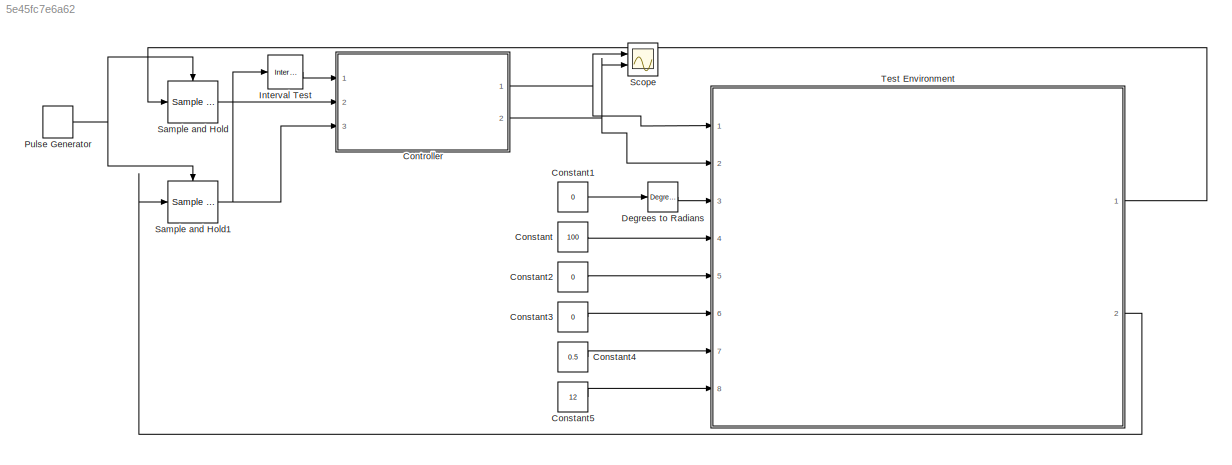
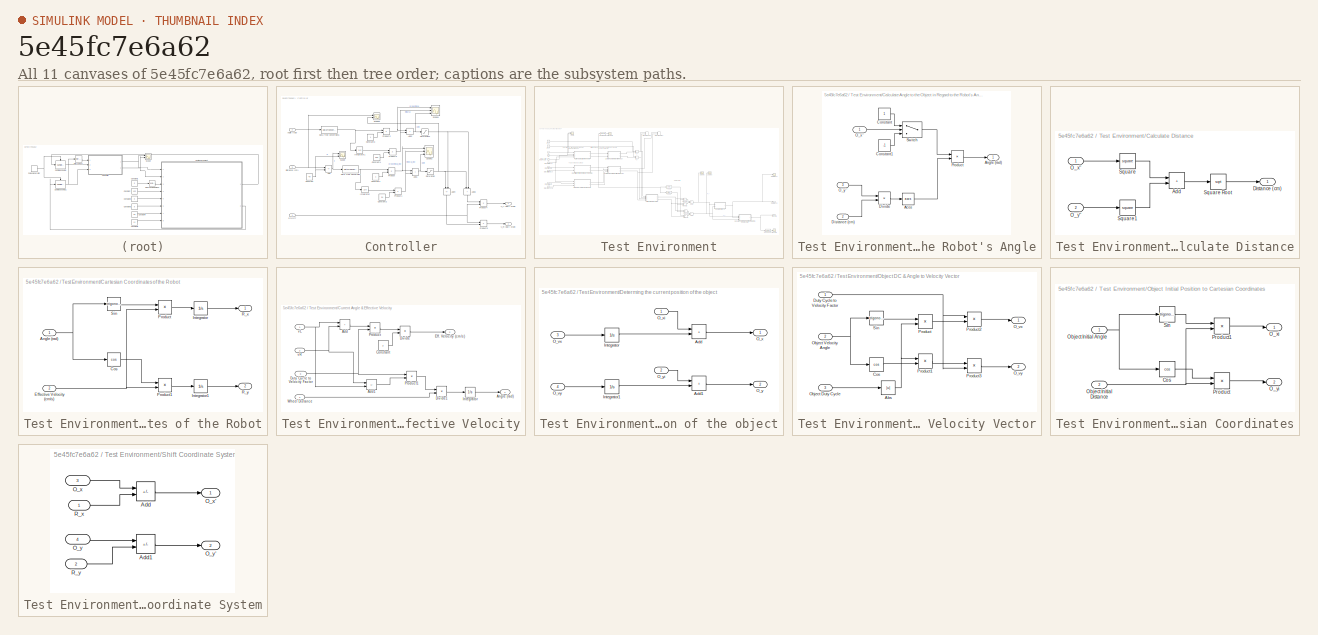
[diagram: thumbnail index - all 11 canvases of the model, root first then tree order]
MODEL slx_5e45fc7e6a62
KIND model
CONFIG AbsTol = auto
CONFIG EnableMultiTasking = on
CONFIG FixedStep = auto
CONFIG MaxStep = auto
CONFIG MinStep = auto
CONFIG RelTol = 1e-3
CONFIG SampleTimeConstraint = Unconstrained
CONFIG SolverName = VariableStepAuto
CONFIG StartTime = 0.0
CONFIG StopTime = 50
BLOCK [Constant] Constant
  Value = 100
BLOCK [Constant] Constant1
  Value = 0
BLOCK [Constant] Constant2
  Value = 0
BLOCK [Constant] Constant3
  Value = 0
BLOCK [Constant] Constant4
  Value = 0.5
BLOCK [Constant] Constant5
  Value = 12
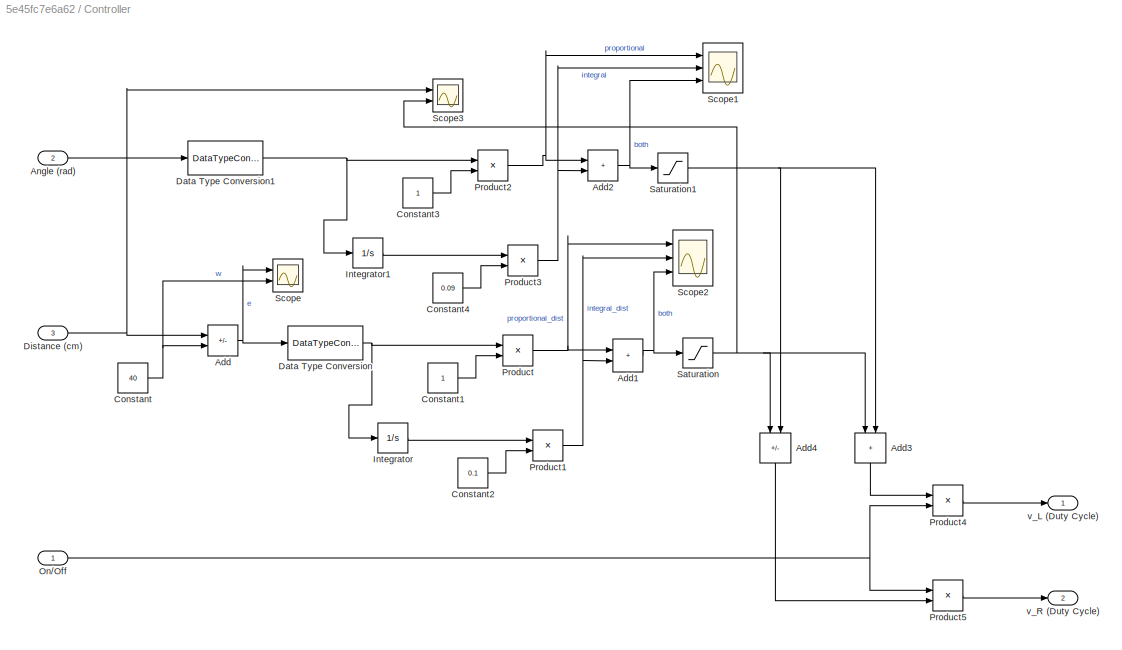
BLOCK [SubSystem] Controller
  Ports = [3, 2]
  RequestExecContextInheritance = off
BLOCK [Sum] Controller/Add
  IconShape = rectangular
  Inputs = +-
  Ports = [2, 1]
BLOCK [Sum] Controller/Add1
  IconShape = rectangular
  Ports = [2, 1]
BLOCK [Sum] Controller/Add2
  IconShape = rectangular
  Ports = [2, 1]
BLOCK [Sum] Controller/Add3
  IconShape = rectangular
  NameLocation = left
  Ports = [2, 1]
BLOCK [Sum] Controller/Add4
  IconShape = rectangular
  Inputs = +-
  NameLocation = left
  Ports = [2, 1]
BLOCK [Inport] Controller/Angle (rad)
  Port = 2
BLOCK [Constant] Controller/Constant
  Value = 40
BLOCK [Constant] Controller/Constant1
BLOCK [Constant] Controller/Constant2
  Value = 0.1
BLOCK [Constant] Controller/Constant3
BLOCK [Constant] Controller/Constant4
  Value = 0.09
BLOCK [DataTypeConversion] Controller/Data Type Conversion
  OutDataTypeStr = double
  RndMeth = Floor
  SaturateOnIntegerOverflow = off
BLOCK [DataTypeConversion] Controller/Data Type Conversion1
  OutDataTypeStr = double
  RndMeth = Floor
  SaturateOnIntegerOverflow = off
BLOCK [Inport] Controller/Distance (cm)
  Port = 3
BLOCK [Integrator] Controller/Integrator
  Ports = [1, 1]
BLOCK [Integrator] Controller/Integrator1
  Ports = [1, 1]
BLOCK [Inport] Controller/On//Off
BLOCK [Product] Controller/Product
  Ports = [2, 1]
BLOCK [Product] Controller/Product1
  Ports = [2, 1]
BLOCK [Product] Controller/Product2
  Ports = [2, 1]
BLOCK [Product] Controller/Product3
  Ports = [2, 1]
BLOCK [Product] Controller/Product4
  Ports = [2, 1]
BLOCK [Product] Controller/Product5
  Ports = [2, 1]
BLOCK [Saturate] Controller/Saturation
  LowerLimit = -100
  UpperLimit = 100
BLOCK [Saturate] Controller/Saturation1
  LowerLimit = -50
  UpperLimit = 50
BLOCK [Scope] Controller/Scope
  Floating = off
  NumInputPorts = 2
  Ports = [2]
  ScopeSpecificationString = Simulink.scopes.TimeScopeBlockCfg('CurrentConfiguration', extmgr.ConfigurationSet(extmgr.Configuration('Core','General UI',true),extmgr.Configuration('Core','Source UI',true),extmgr.Configuration('Sources','WiredSimulink',true,'DataLoggingVariableName','ScopeData1'),extmgr.Configuration('Visuals','Time Domain',true,'SerializedDisplays',{struct('MinYLimReal','-58.91297','MaxYLimReal','130.21677','Y...<+1427ch>
BLOCK [Scope] Controller/Scope1
  Floating = off
  NumInputPorts = 3
  Ports = [3]
  ScopeSpecificationString = Simulink.scopes.TimeScopeBlockCfg('CurrentConfiguration', extmgr.ConfigurationSet(extmgr.Configuration('Core','General UI',true),extmgr.Configuration('Core','Source UI',true),extmgr.Configuration('Sources','WiredSimulink',true,'DataLoggingVariableName','ScopeData2'),extmgr.Configuration('Visuals','Time Domain',true,'SerializedDisplays',{struct('MinYLimReal','-4.13948','MaxYLimReal','5.98094','YLab...<+1442ch>
BLOCK [Scope] Controller/Scope2
  Floating = off
  NumInputPorts = 3
  Ports = [3]
  ScopeSpecificationString = Simulink.scopes.TimeScopeBlockCfg('CurrentConfiguration', extmgr.ConfigurationSet(extmgr.Configuration('Core','General UI',true),extmgr.Configuration('Core','Source UI',true),extmgr.Configuration('Sources','WiredSimulink',true,'DataLoggingVariableName','ScopeData3'),extmgr.Configuration('Visuals','Time Domain',true,'SerializedDisplays',{struct('MinYLimReal','-65.57541','MaxYLimReal','182.72615','Y...<+1461ch>
BLOCK [Scope] Controller/Scope3
  Floating = off
  NumInputPorts = 2
  Ports = [2]
  ScopeSpecificationString = Simulink.scopes.TimeScopeBlockCfg('CurrentConfiguration', extmgr.ConfigurationSet(extmgr.Configuration('Core','General UI',true),extmgr.Configuration('Core','Source UI',true),extmgr.Configuration('Sources','WiredSimulink',true,'DataLoggingVariableName','ScopeData4'),extmgr.Configuration('Visuals','Time Domain',true,'SerializedDisplays',{struct('MinYLimReal','-64.75139','MaxYLimReal','175.30992','Y...<+1448ch>
BLOCK [Outport] Controller/v_L (Duty Cycle)
BLOCK [Outport] Controller/v_R (Duty Cycle)
  Port = 2
BLOCK [Reference] Degrees to Radians  REF=simulink_extras/Transformations/Degrees to
Radians
  Ports = [1, 1]
  SourceBlock = simulink_extras/Transformations/Degrees to\nRadians
  SourceProductBaseCode = SL
  SourceType = DegreesToRadians
BLOCK [Reference] Interval Test  REF=simulink/Logic and Bit
Operations/Interval Test
  Ports = [1, 1]
  SourceBlock = simulink/Logic and Bit\nOperations/Interval Test
  SourceProductBaseCode = SL
  SourceType = Interval Test
BLOCK [DiscretePulseGenerator] Pulse Generator
  Period = 0.5
  Ports = [0, 1]
  PulseType = Time based
  PulseWidth = 5
BLOCK [Reference] Sample and Hold  REF=dspsigops/Sample
and Hold
  Ports = [1, 1, 0, 1]
  SourceBlock = dspsigops/Sample\nand Hold
  SourceProductBaseCode = DS
  SourceType = Sample and Hold
BLOCK [Reference] Sample and Hold1  REF=dspsigops/Sample
and Hold
  Ports = [1, 1, 0, 1]
  SourceBlock = dspsigops/Sample\nand Hold
  SourceProductBaseCode = DS
  SourceType = Sample and Hold
BLOCK [Scope] Scope
  Floating = off
  NumInputPorts = 2
  Ports = [2]
  ScopeSpecificationString = Simulink.scopes.TimeScopeBlockCfg('CurrentConfiguration', extmgr.ConfigurationSet(extmgr.Configuration('Core','General UI',true),extmgr.Configuration('Core','Source UI',true),extmgr.Configuration('Sources','WiredSimulink',true,'DataLoggingVariableName','ScopeData5'),extmgr.Configuration('Visuals','Time Domain',true,'SerializedDisplays',{struct('MinYLimReal','-15.17993','MaxYLimReal','117.5951','YL...<+1422ch>
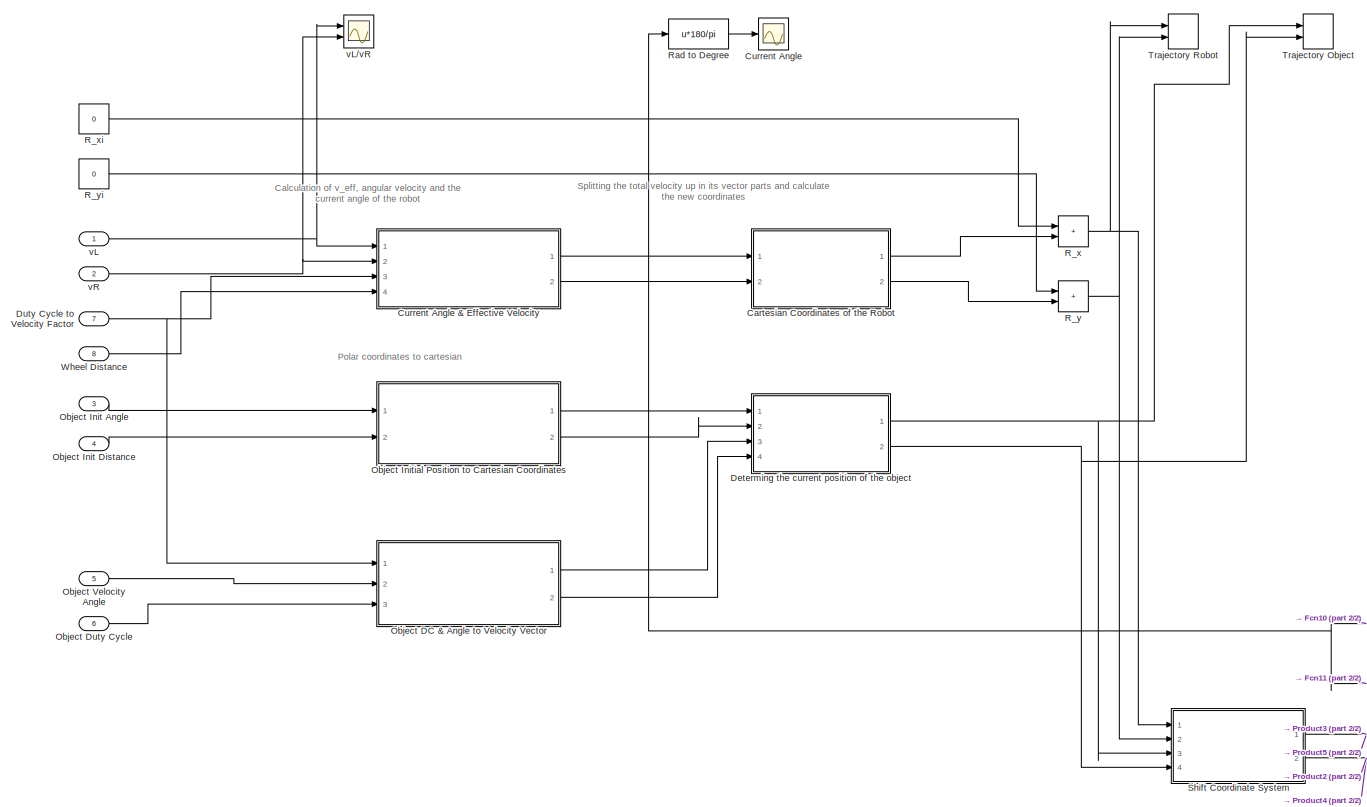
[diagram: Test Environment - part 1/2, middle left region]
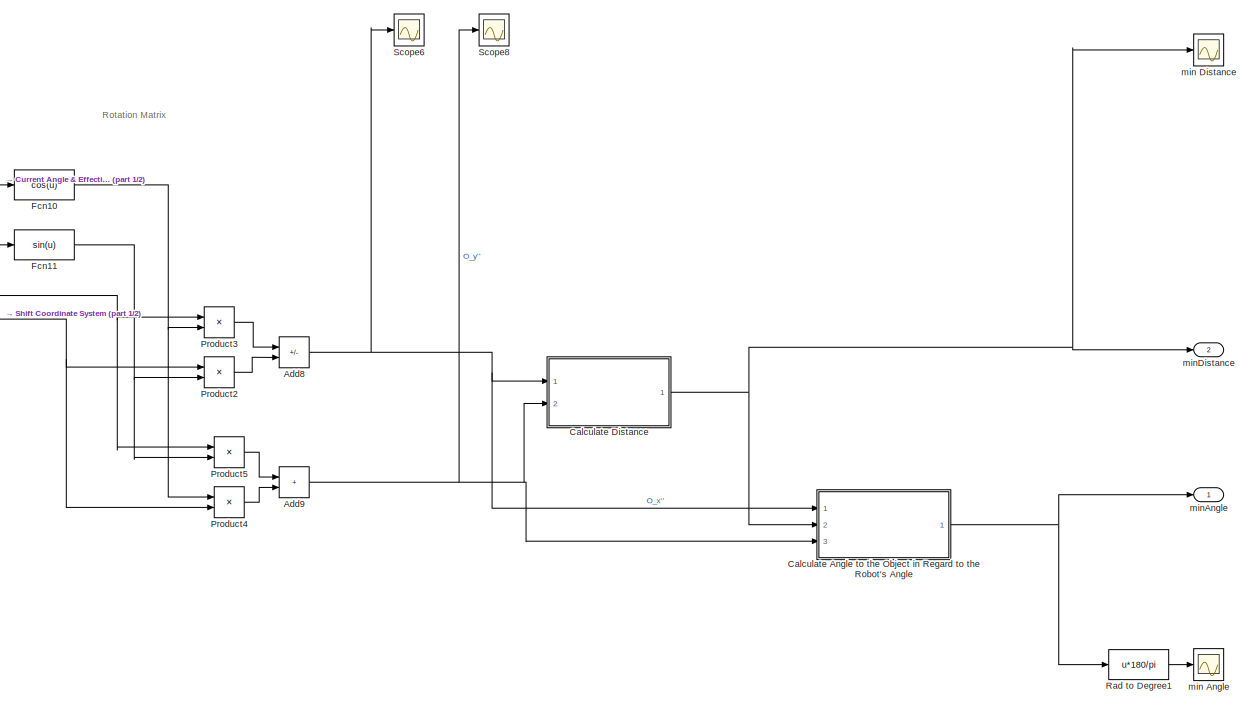
[diagram: Test Environment - part 2/2, bottom right region]
BLOCK [SubSystem] Test Environment
  Ports = [8, 2]
  RequestExecContextInheritance = off
BLOCK [Sum] Test Environment/Add8
  IconShape = rectangular
  Inputs = +-
  Ports = [2, 1]
BLOCK [Sum] Test Environment/Add9
  IconShape = rectangular
  Ports = [2, 1]
BLOCK [SubSystem] Test Environment/Calculate Angle to the Object in Regard to the Robot's Angle
  Ports = [3, 1]
  RequestExecContextInheritance = off
BLOCK [Trigonometry] Test Environment/Calculate Angle to the Object in Regard to the Robot's Angle/Acos
  Operator = acos
  Ports = [1, 1]
BLOCK [Outport] Test Environment/Calculate Angle to the Object in Regard to the Robot's Angle/Angle (rad)
BLOCK [Constant] Test Environment/Calculate Angle to the Object in Regard to the Robot's Angle/Constant
BLOCK [Constant] Test Environment/Calculate Angle to the Object in Regard to the Robot's Angle/Constant1
  Value = -1
BLOCK [Inport] Test Environment/Calculate Angle to the Object in Regard to the Robot's Angle/Distance (cm)
  Port = 2
BLOCK [Product] Test Environment/Calculate Angle to the Object in Regard to the Robot's Angle/Divide
  Inputs = */
  Ports = [2, 1]
BLOCK [Inport] Test Environment/Calculate Angle to the Object in Regard to the Robot's Angle/O_x''
BLOCK [Inport] Test Environment/Calculate Angle to the Object in Regard to the Robot's Angle/O_y''
  Port = 3
BLOCK [Product] Test Environment/Calculate Angle to the Object in Regard to the Robot's Angle/Product
  Ports = [2, 1]
BLOCK [Switch] Test Environment/Calculate Angle to the Object in Regard to the Robot's Angle/Switch
  Criteria = u2 > Threshold
  InputSameDT = off
  SaturateOnIntegerOverflow = off
BLOCK [SubSystem] Test Environment/Calculate Distance
  Ports = [2, 1]
  RequestExecContextInheritance = off
BLOCK [Sum] Test Environment/Calculate Distance/Add
  IconShape = rectangular
  Ports = [2, 1]
BLOCK [Outport] Test Environment/Calculate Distance/Distance (cm)
BLOCK [Inport] Test Environment/Calculate Distance/O_x''
BLOCK [Inport] Test Environment/Calculate Distance/O_y''
  Port = 2
BLOCK [Math] Test Environment/Calculate Distance/Square
  Operator = square
  Ports = [1, 1]
BLOCK [Sqrt] Test Environment/Calculate Distance/Square Root
BLOCK [Math] Test Environment/Calculate Distance/Square1
  Operator = square
  Ports = [1, 1]
BLOCK [SubSystem] Test Environment/Cartesian Coordinates of the Robot
  Ports = [2, 2]
  RequestExecContextInheritance = off
BLOCK [Inport] Test Environment/Cartesian Coordinates of the Robot/Angle (rad)
BLOCK [Trigonometry] Test Environment/Cartesian Coordinates of the Robot/Cos
  Operator = cos
  Ports = [1, 1]
BLOCK [Inport] Test Environment/Cartesian Coordinates of the Robot/Effective Velocity (cm//s)
  Port = 2
BLOCK [Integrator] Test Environment/Cartesian Coordinates of the Robot/Integrator
  Ports = [1, 1]
BLOCK [Integrator] Test Environment/Cartesian Coordinates of the Robot/Integrator1
  Ports = [1, 1]
BLOCK [Product] Test Environment/Cartesian Coordinates of the Robot/Product
  Ports = [2, 1]
BLOCK [Product] Test Environment/Cartesian Coordinates of the Robot/Product1
  Ports = [2, 1]
BLOCK [Outport] Test Environment/Cartesian Coordinates of the Robot/R_x
BLOCK [Outport] Test Environment/Cartesian Coordinates of the Robot/R_y
  Port = 2
BLOCK [Trigonometry] Test Environment/Cartesian Coordinates of the Robot/Sin
  Ports = [1, 1]
BLOCK [Scope] Test Environment/Current Angle
  Floating = off
  NumInputPorts = 1
  Ports = [1]
  ScopeSpecificationString = Simulink.scopes.TimeScopeBlockCfg('CurrentConfiguration', extmgr.ConfigurationSet(extmgr.Configuration('Core','General UI',true),extmgr.Configuration('Core','Source UI',true),extmgr.Configuration('Sources','WiredSimulink',true,'DataLoggingVariableName','ScopeData1'),extmgr.Configuration('Visuals','Time Domain',true,'SerializedDisplays',{struct('MinYLimReal','-106.06263','MaxYLimReal','11.78474','Y...<+1415ch>
BLOCK [SubSystem] Test Environment/Current Angle & Effective Velocity
  Ports = [4, 2]
  RequestExecContextInheritance = off
BLOCK [Sum] Test Environment/Current Angle & Effective Velocity/Add
  IconShape = rectangular
  Ports = [2, 1]
BLOCK [Sum] Test Environment/Current Angle & Effective Velocity/Add1
  IconShape = rectangular
  Inputs = +-
  Ports = [2, 1]
BLOCK [Outport] Test Environment/Current Angle & Effective Velocity/Angle (rad)
BLOCK [Constant] Test Environment/Current Angle & Effective Velocity/Constant
  Value = 2
BLOCK [Product] Test Environment/Current Angle & Effective Velocity/Divide
  Inputs = */
  Ports = [2, 1]
BLOCK [Product] Test Environment/Current Angle & Effective Velocity/Divide1
  Inputs = */
  Ports = [2, 1]
BLOCK [Inport] Test Environment/Current Angle & Effective Velocity/Duty Cycle to Velocity Factor
  Port = 3
BLOCK [Outport] Test Environment/Current Angle & Effective Velocity/Eff. Velocity (cm//s)
  Port = 2
BLOCK [Integrator] Test Environment/Current Angle & Effective Velocity/Integrator
  Ports = [1, 1]
BLOCK [Product] Test Environment/Current Angle & Effective Velocity/Product
  Ports = [2, 1]
BLOCK [Product] Test Environment/Current Angle & Effective Velocity/Product1
  Ports = [2, 1]
BLOCK [Inport] Test Environment/Current Angle & Effective Velocity/Wheel Distance
  Port = 4
BLOCK [Inport] Test Environment/Current Angle & Effective Velocity/vL
BLOCK [Inport] Test Environment/Current Angle & Effective Velocity/vR
  Port = 2
BLOCK [SubSystem] Test Environment/Determing the current position of the object
  Ports = [4, 2]
  RequestExecContextInheritance = off
BLOCK [Sum] Test Environment/Determing the current position of the object/Add
  IconShape = rectangular
  Ports = [2, 1]
BLOCK [Sum] Test Environment/Determing the current position of the object/Add1
  IconShape = rectangular
  Ports = [2, 1]
BLOCK [Integrator] Test Environment/Determing the current position of the object/Integrator
  Ports = [1, 1]
BLOCK [Integrator] Test Environment/Determing the current position of the object/Integrator1
  Ports = [1, 1]
BLOCK [Inport] Test Environment/Determing the current position of the object/O_vx
  Port = 3
BLOCK [Inport] Test Environment/Determing the current position of the object/O_vy
  Port = 4
BLOCK [Outport] Test Environment/Determing the current position of the object/O_x
BLOCK [Inport] Test Environment/Determing the current position of the object/O_xi
BLOCK [Outport] Test Environment/Determing the current position of the object/O_y
  Port = 2
BLOCK [Inport] Test Environment/Determing the current position of the object/O_yi
  Port = 2
BLOCK [Inport] Test Environment/Duty Cycle to Velocity Factor
  Port = 7
BLOCK [Fcn] Test Environment/Fcn10
  Expr = cos(u)
BLOCK [Fcn] Test Environment/Fcn11
  Expr = sin(u)
BLOCK [SubSystem] Test Environment/Object DC & Angle to Velocity Vector
  Ports = [3, 2]
  RequestExecContextInheritance = off
BLOCK [Abs] Test Environment/Object DC & Angle to Velocity Vector/Abs
  SaturateOnIntegerOverflow = off
BLOCK [Trigonometry] Test Environment/Object DC & Angle to Velocity Vector/Cos
  Operator = cos
  Ports = [1, 1]
BLOCK [Inport] Test Environment/Object DC & Angle to Velocity Vector/Duty Cycle to Velocity Factor
BLOCK [Outport] Test Environment/Object DC & Angle to Velocity Vector/O_vx
BLOCK [Outport] Test Environment/Object DC & Angle to Velocity Vector/O_vy
  Port = 2
BLOCK [Inport] Test Environment/Object DC & Angle to Velocity Vector/Object Duty Cycle
  Port = 3
BLOCK [Inport] Test Environment/Object DC & Angle to Velocity Vector/Object Velocity Angle
  Port = 2
BLOCK [Product] Test Environment/Object DC & Angle to Velocity Vector/Product
  Ports = [2, 1]
BLOCK [Product] Test Environment/Object DC & Angle to Velocity Vector/Product1
  Ports = [2, 1]
BLOCK [Product] Test Environment/Object DC & Angle to Velocity Vector/Product2
  Ports = [2, 1]
BLOCK [Product] Test Environment/Object DC & Angle to Velocity Vector/Product3
  Ports = [2, 1]
BLOCK [Trigonometry] Test Environment/Object DC & Angle to Velocity Vector/Sin
  Ports = [1, 1]
BLOCK [Inport] Test Environment/Object Duty Cycle
  Port = 6
BLOCK [Inport] Test Environment/Object Init Angle
  Port = 3
BLOCK [Inport] Test Environment/Object Init Distance
  Port = 4
BLOCK [SubSystem] Test Environment/Object Initial Position to Cartesian Coordinates
  Ports = [2, 2]
  RequestExecContextInheritance = off
BLOCK [Trigonometry] Test Environment/Object Initial Position to Cartesian Coordinates/Cos
  Operator = cos
  Ports = [1, 1]
BLOCK [Outport] Test Environment/Object Initial Position to Cartesian Coordinates/O_xi
BLOCK [Outport] Test Environment/Object Initial Position to Cartesian Coordinates/O_yi
  Port = 2
BLOCK [Inport] Test Environment/Object Initial Position to Cartesian Coordinates/Object Initial Angle
BLOCK [Inport] Test Environment/Object Initial Position to Cartesian Coordinates/Object Initial Distance
  Port = 2
BLOCK [Product] Test Environment/Object Initial Position to Cartesian Coordinates/Product
  Ports = [2, 1]
BLOCK [Product] Test Environment/Object Initial Position to Cartesian Coordinates/Product1
  Ports = [2, 1]
BLOCK [Trigonometry] Test Environment/Object Initial Position to Cartesian Coordinates/Sin
  Ports = [1, 1]
BLOCK [Inport] Test Environment/Object Velocity Angle
  Port = 5
BLOCK [Product] Test Environment/Product2
  Ports = [2, 1]
BLOCK [Product] Test Environment/Product3
  Ports = [2, 1]
BLOCK [Product] Test Environment/Product4
  Ports = [2, 1]
BLOCK [Product] Test Environment/Product5
  Ports = [2, 1]
BLOCK [Sum] Test Environment/R_x
  IconShape = rectangular
  Ports = [2, 1]
BLOCK [Constant] Test Environment/R_xi
  Value = 0
BLOCK [Sum] Test Environment/R_y
  IconShape = rectangular
  Ports = [2, 1]
BLOCK [Constant] Test Environment/R_yi
  Value = 0
BLOCK [Fcn] Test Environment/Rad to Degree
  Expr = u*180/pi
BLOCK [Fcn] Test Environment/Rad to Degree1
  Expr = u*180/pi
BLOCK [Scope] Test Environment/Scope6
  Floating = off
  NumInputPorts = 1
  Ports = [1]
  ScopeSpecificationString = Simulink.scopes.TimeScopeBlockCfg('CurrentConfiguration', extmgr.ConfigurationSet(extmgr.Configuration('Core','General UI',true),extmgr.Configuration('Core','Source UI',true),extmgr.Configuration('Sources','WiredSimulink',true,'DataLoggingVariableName','ScopeData3'),extmgr.Configuration('Visuals','Time Domain',true,'SerializedDisplays',{struct('MinYLimReal','-63.69427','MaxYLimReal','215.89772','Y...<+1404ch>
BLOCK [Scope] Test Environment/Scope8
  Floating = off
  NumInputPorts = 1
  Ports = [1]
  ScopeSpecificationString = Simulink.scopes.TimeScopeBlockCfg('CurrentConfiguration', extmgr.ConfigurationSet(extmgr.Configuration('Core','General UI',true),extmgr.Configuration('Core','Source UI',true),extmgr.Configuration('Sources','WiredSimulink',true,'DataLoggingVariableName','ScopeData5'),extmgr.Configuration('Visuals','Time Domain',true,'SerializedDisplays',{struct('MinYLimReal','31.82805','MaxYLimReal','139.52764','YL...<+1447ch>
BLOCK [SubSystem] Test Environment/Shift Coordinate System
  Ports = [4, 2]
  RequestExecContextInheritance = off
BLOCK [Sum] Test Environment/Shift Coordinate System/Add
  IconShape = rectangular
  Inputs = +-
  Ports = [2, 1]
BLOCK [Sum] Test Environment/Shift Coordinate System/Add1
  IconShape = rectangular
  Inputs = +-
  Ports = [2, 1]
BLOCK [Inport] Test Environment/Shift Coordinate System/O_x
  NameLocation = top
  Port = 3
BLOCK [Outport] Test Environment/Shift Coordinate System/O_x'
BLOCK [Inport] Test Environment/Shift Coordinate System/O_y
  NameLocation = top
  Port = 4
BLOCK [Outport] Test Environment/Shift Coordinate System/O_y'
  Port = 2
BLOCK [Inport] Test Environment/Shift Coordinate System/R_x
  NameLocation = top
BLOCK [Inport] Test Environment/Shift Coordinate System/R_y
  NameLocation = top
  Port = 2
BLOCK [Record] Test Environment/Trajectory Object
  CompatibilityTag = XY
  FileSettingsInternal = {"entries":[{"content":{"excelSettings":{"content":{},"type":"Streamout.ExcelSettings"}},"type":"Streamout.FileSettingStorage","uuid":"4358cfd4-5c60-4c2b-a41c-9f08c4051154"}],"packageUris":["http://schema.mathworks.com/mf0/streamout_blocks/R2020a"],"version":"1.0"}
  Layout = [1 1]
  Ports = [2]
  SignalsInternal = {"entries":[{"content":{"signals":[{"content":{"blockPath":["TestEnvironment/Test Environment/Trajectory Object"],"channel":[],"dimensions":[1],"domain":"TestEnvironment/Test Environment/Trajectory Object","lineColor":"#a2142f","plots":[1],"port":1,"sid":[""],"signalID":97443,"signalName":"Determing the current position of the object:1"},"type":"RecordBlkView.Signal","uuid":"aa5916f7-6d25-42f7-895...<+575ch>
  VisualizationBindings = {"xyplotplugin":{"info":[{"series":[{"bindingParametersList":[{"parameter":"X-Axis","signalID":97443,"signalName":"Determing the current position of the object:1"},{"parameter":"Y-Axis","signalID":97447,"signalName":"Determing the current position of the object:2"}],"seriesID":34098}],"subplotID":1}]}}
  st = -1
BLOCK [Record] Test Environment/Trajectory Robot
  CompatibilityTag = XY
  FileSettingsInternal = {"entries":[{"content":{"excelSettings":{"content":{},"type":"Streamout.ExcelSettings"}},"type":"Streamout.FileSettingStorage","uuid":"ce479cd9-54bd-4dbf-b5c9-76e8a047de80"}],"packageUris":["http://schema.mathworks.com/mf0/streamout_blocks/R2020a"],"version":"1.0"}
  Layout = [1 1]
  Ports = [2]
  SignalsInternal = {"entries":[{"content":{"signals":[{"content":{"blockPath":["TestEnvironment/Test Environment/Trajectory Robot"],"channel":[],"dimensions":[1],"domain":"TestEnvironment/Test Environment/Trajectory Robot","lineColor":"#a2142f","plots":[1],"port":1,"sid":[""],"signalID":97451,"signalName":"R_x"},"type":"RecordBlkView.Signal","uuid":"04633b91-b40c-4f09-8643-1ba6794452d3"},{"content":{"blockPath":["Te...<+485ch>
  VisualizationBindings = {"xyplotplugin":{"info":[{"series":[{"bindingParametersList":[{"parameter":"X-Axis","signalID":97451,"signalName":"R_x"},{"parameter":"Y-Axis","signalID":97455,"signalName":"R_y"}],"seriesID":34460}],"subplotID":1}]}}
  st = -1
BLOCK [Inport] Test Environment/Wheel Distance
  Port = 8
BLOCK [Scope] Test Environment/min Angle
  Floating = off
  NumInputPorts = 1
  Ports = [1]
  ScopeSpecificationString = Simulink.scopes.TimeScopeBlockCfg('CurrentConfiguration', extmgr.ConfigurationSet(extmgr.Configuration('Core','General UI',true),extmgr.Configuration('Core','Source UI',true),extmgr.Configuration('Sources','WiredSimulink',true,'DataLoggingVariableName','ScopeData6'),extmgr.Configuration('Visuals','Time Domain',true,'SerializedDisplays',{struct('MinYLimReal','-74.7786','MaxYLimReal','86.08651','YLa...<+1421ch>
BLOCK [Scope] Test Environment/min Distance
  Floating = off
  NumInputPorts = 1
  Ports = [1]
  ScopeSpecificationString = Simulink.scopes.TimeScopeBlockCfg('CurrentConfiguration', extmgr.ConfigurationSet(extmgr.Configuration('Core','General UI',true),extmgr.Configuration('Core','Source UI',true),extmgr.Configuration('Sources','WiredSimulink',true,'DataLoggingVariableName','ScopeData2'),extmgr.Configuration('Visuals','Time Domain',true,'SerializedDisplays',{struct('MinYLimReal','19.22919','MaxYLimReal','165.97875','YL...<+1417ch>
BLOCK [Outport] Test Environment/minAngle
BLOCK [Outport] Test Environment/minDistance
  Port = 2
BLOCK [Inport] Test Environment/vL
BLOCK [Scope] Test Environment/vL//vR
  Floating = off
  NumInputPorts = 2
  Ports = [2]
  ScopeSpecificationString = Simulink.scopes.TimeScopeBlockCfg('CurrentConfiguration', extmgr.ConfigurationSet(extmgr.Configuration('Core','General UI',true),extmgr.Configuration('Core','Source UI',true),extmgr.Configuration('Sources','WiredSimulink',true,'DataLoggingVariableName','ScopeData1','DataLoggingLimitDataPoints',true,'DataLoggingSaveFormat','Array','DataLoggingDecimation','1','DataLoggingDecimateData',true),extmgr.C...<+1561ch>
BLOCK [Inport] Test Environment/vR
  Port = 2
ANNOTATION Test Environment: Calculation of v_eff, angular velocity and the current angle of the robot
ANNOTATION Test Environment: Polar coordinates to cartesian
ANNOTATION Test Environment: Rotation Matrix
ANNOTATION Test Environment: Splitting the total velocity up in its vector parts and calculate the new coordinates
LINE Constant1:1 -> Degrees to Radians:1
LINE Constant2:1 -> Test Environment:5
LINE Constant3:1 -> Test Environment:6
LINE Constant4:1 -> Test Environment:7
LINE Constant5:1 -> Test Environment:8
LINE Constant:1 -> Test Environment:4
NET Controller/Add1:1 -> Controller/Saturation:1, Controller/Scope2:3
NET Controller/Add2:1 -> Controller/Saturation1:1, Controller/Scope1:3
LINE Controller/Add3:1 -> Controller/Product4:1
LINE Controller/Add4:1 -> Controller/Product5:2
NET Controller/Add:1 -> Controller/Data Type Conversion:1, Controller/Scope:1
LINE Controller/Angle (rad):1 -> Controller/Data Type Conversion1:1
LINE Controller/Constant1:1 -> Controller/Product:2
LINE Controller/Constant2:1 -> Controller/Product1:2
LINE Controller/Constant3:1 -> Controller/Product2:2
LINE Controller/Constant4:1 -> Controller/Product3:2
NET Controller/Constant:1 -> Controller/Add:2, Controller/Scope:2
NET Controller/Data Type Conversion1:1 -> Controller/Integrator1:1, Controller/Product2:1
NET Controller/Data Type Conversion:1 -> Controller/Integrator:1, Controller/Product:1
NET Controller/Distance (cm):1 -> Controller/Add:1, Controller/Scope3:1
LINE Controller/Integrator1:1 -> Controller/Product3:1
LINE Controller/Integrator:1 -> Controller/Product1:1
NET Controller/On//Off:1 -> Controller/Product4:2, Controller/Product5:1
NET Controller/Product1:1 -> Controller/Add1:2, Controller/Scope2:2
NET Controller/Product2:1 -> Controller/Add2:1, Controller/Scope1:1
NET Controller/Product3:1 -> Controller/Add2:2, Controller/Scope1:2
LINE Controller/Product4:1 -> Controller/v_L (Duty Cycle):1
LINE Controller/Product5:1 -> Controller/v_R (Duty Cycle):1
NET Controller/Product:1 -> Controller/Add1:1, Controller/Scope2:1
NET Controller/Saturation1:1 -> Controller/Add3:2, Controller/Add4:2
NET Controller/Saturation:1 -> Controller/Add3:1, Controller/Add4:1, Controller/Scope3:2
NET Controller:1 -> Scope:1, Test Environment:1
NET Controller:2 -> Scope:2, Test Environment:2
LINE Degrees to Radians:1 -> Test Environment:3
LINE Interval Test:1 -> Controller:1
NET Pulse Generator:1 -> Sample and Hold1:trigger, Sample and Hold:trigger
NET Sample and Hold1:1 -> Controller:3, Interval Test:1
LINE Sample and Hold:1 -> Controller:2
NET Test Environment/Add8:1 -> Test Environment/Calculate Angle to the Object in Regard to the Robot's Angle:1, Test Environment/Calculate Distance:1, Test Environment/Scope6:1
NET Test Environment/Add9:1 -> Test Environment/Calculate Angle to the Object in Regard to the Robot's Angle:3, Test Environment/Calculate Distance:2, Test Environment/Scope8:1
LINE Test Environment/Calculate Angle to the Object in Regard to the Robot's Angle/Acos:1 -> Test Environment/Calculate Angle to the Object in Regard to the Robot's Angle/Product:2
LINE Test Environment/Calculate Angle to the Object in Regard to the Robot's Angle/Constant1:1 -> Test Environment/Calculate Angle to the Object in Regard to the Robot's Angle/Switch:3
LINE Test Environment/Calculate Angle to the Object in Regard to the Robot's Angle/Constant:1 -> Test Environment/Calculate Angle to the Object in Regard to the Robot's Angle/Switch:1
LINE Test Environment/Calculate Angle to the Object in Regard to the Robot's Angle/Distance (cm):1 -> Test Environment/Calculate Angle to the Object in Regard to the Robot's Angle/Divide:2
LINE Test Environment/Calculate Angle to the Object in Regard to the Robot's Angle/Divide:1 -> Test Environment/Calculate Angle to the Object in Regard to the Robot's Angle/Acos:1
LINE Test Environment/Calculate Angle to the Object in Regard to the Robot's Angle/O_x'':1 -> Test Environment/Calculate Angle to the Object in Regard to the Robot's Angle/Switch:2
LINE Test Environment/Calculate Angle to the Object in Regard to the Robot's Angle/O_y'':1 -> Test Environment/Calculate Angle to the Object in Regard to the Robot's Angle/Divide:1
LINE Test Environment/Calculate Angle to the Object in Regard to the Robot's Angle/Product:1 -> Test Environment/Calculate Angle to the Object in Regard to the Robot's Angle/Angle (rad):1
LINE Test Environment/Calculate Angle to the Object in Regard to the Robot's Angle/Switch:1 -> Test Environment/Calculate Angle to the Object in Regard to the Robot's Angle/Product:1
NET Test Environment/Calculate Angle to the Object in Regard to the Robot's Angle:1 -> Test Environment/Rad to Degree1:1, Test Environment/minAngle:1
LINE Test Environment/Calculate Distance/Add:1 -> Test Environment/Calculate Distance/Square Root:1
LINE Test Environment/Calculate Distance/O_x'':1 -> Test Environment/Calculate Distance/Square:1
LINE Test Environment/Calculate Distance/O_y'':1 -> Test Environment/Calculate Distance/Square1:1
LINE Test Environment/Calculate Distance/Square Root:1 -> Test Environment/Calculate Distance/Distance (cm):1
LINE Test Environment/Calculate Distance/Square1:1 -> Test Environment/Calculate Distance/Add:2
LINE Test Environment/Calculate Distance/Square:1 -> Test Environment/Calculate Distance/Add:1
NET Test Environment/Calculate Distance:1 -> Test Environment/Calculate Angle to the Object in Regard to the Robot's Angle:2, Test Environment/min Distance:1, Test Environment/minDistance:1
NET Test Environment/Cartesian Coordinates of the Robot/Angle (rad):1 -> Test Environment/Cartesian Coordinates of the Robot/Cos:1, Test Environment/Cartesian Coordinates of the Robot/Sin:1
LINE Test Environment/Cartesian Coordinates of the Robot/Cos:1 -> Test Environment/Cartesian Coordinates of the Robot/Product1:1
NET Test Environment/Cartesian Coordinates of the Robot/Effective Velocity (cm//s):1 -> Test Environment/Cartesian Coordinates of the Robot/Product1:2, Test Environment/Cartesian Coordinates of the Robot/Product:2
LINE Test Environment/Cartesian Coordinates of the Robot/Integrator1:1 -> Test Environment/Cartesian Coordinates of the Robot/R_y:1
LINE Test Environment/Cartesian Coordinates of the Robot/Integrator:1 -> Test Environment/Cartesian Coordinates of the Robot/R_x:1
LINE Test Environment/Cartesian Coordinates of the Robot/Product1:1 -> Test Environment/Cartesian Coordinates of the Robot/Integrator1:1
LINE Test Environment/Cartesian Coordinates of the Robot/Product:1 -> Test Environment/Cartesian Coordinates of the Robot/Integrator:1
LINE Test Environment/Cartesian Coordinates of the Robot/Sin:1 -> Test Environment/Cartesian Coordinates of the Robot/Product:1
LINE Test Environment/Cartesian Coordinates of the Robot:1 -> Test Environment/R_x:2
LINE Test Environment/Cartesian Coordinates of the Robot:2 -> Test Environment/R_y:2
LINE Test Environment/Current Angle & Effective Velocity/Add1:1 -> Test Environment/Current Angle & Effective Velocity/Product1:2
LINE Test Environment/Current Angle & Effective Velocity/Add:1 -> Test Environment/Current Angle & Effective Velocity/Product:1
LINE Test Environment/Current Angle & Effective Velocity/Constant:1 -> Test Environment/Current Angle & Effective Velocity/Divide:2
LINE Test Environment/Current Angle & Effective Velocity/Divide1:1 -> Test Environment/Current Angle & Effective Velocity/Integrator:1
LINE Test Environment/Current Angle & Effective Velocity/Divide:1 -> Test Environment/Current Angle & Effective Velocity/Eff. Velocity (cm//s):1
NET Test Environment/Current Angle & Effective Velocity/Duty Cycle to Velocity Factor:1 -> Test Environment/Current Angle & Effective Velocity/Product1:1, Test Environment/Current Angle & Effective Velocity/Product:2
LINE Test Environment/Current Angle & Effective Velocity/Integrator:1 -> Test Environment/Current Angle & Effective Velocity/Angle (rad):1
LINE Test Environment/Current Angle & Effective Velocity/Product1:1 -> Test Environment/Current Angle & Effective Velocity/Divide1:1
LINE Test Environment/Current Angle & Effective Velocity/Product:1 -> Test Environment/Current Angle & Effective Velocity/Divide:1
LINE Test Environment/Current Angle & Effective Velocity/Wheel Distance:1 -> Test Environment/Current Angle & Effective Velocity/Divide1:2
NET Test Environment/Current Angle & Effective Velocity/vL:1 -> Test Environment/Current Angle & Effective Velocity/Add1:2, Test Environment/Current Angle & Effective Velocity/Add:1
NET Test Environment/Current Angle & Effective Velocity/vR:1 -> Test Environment/Current Angle & Effective Velocity/Add1:1, Test Environment/Current Angle & Effective Velocity/Add:2
NET Test Environment/Current Angle & Effective Velocity:1 -> Test Environment/Cartesian Coordinates of the Robot:1, Test Environment/Fcn10:1, Test Environment/Fcn11:1, Test Environment/Rad to Degree:1
LINE Test Environment/Current Angle & Effective Velocity:2 -> Test Environment/Cartesian Coordinates of the Robot:2
LINE Test Environment/Determing the current position of the object/Add1:1 -> Test Environment/Determing the current position of the object/O_y:1
LINE Test Environment/Determing the current position of the object/Add:1 -> Test Environment/Determing the current position of the object/O_x:1
LINE Test Environment/Determing the current position of the object/Integrator1:1 -> Test Environment/Determing the current position of the object/Add1:2
LINE Test Environment/Determing the current position of the object/Integrator:1 -> Test Environment/Determing the current position of the object/Add:2
LINE Test Environment/Determing the current position of the object/O_vx:1 -> Test Environment/Determing the current position of the object/Integrator:1
LINE Test Environment/Determing the current position of the object/O_vy:1 -> Test Environment/Determing the current position of the object/Integrator1:1
LINE Test Environment/Determing the current position of the object/O_xi:1 -> Test Environment/Determing the current position of the object/Add:1
LINE Test Environment/Determing the current position of the object/O_yi:1 -> Test Environment/Determing the current position of the object/Add1:1
NET Test Environment/Determing the current position of the object:1 -> Test Environment/Shift Coordinate System:3, Test Environment/Trajectory Object:1
NET Test Environment/Determing the current position of the object:2 -> Test Environment/Shift Coordinate System:4, Test Environment/Trajectory Object:2
NET Test Environment/Duty Cycle to Velocity Factor:1 -> Test Environment/Current Angle & Effective Velocity:3, Test Environment/Object DC & Angle to Velocity Vector:1
NET Test Environment/Fcn10:1 -> Test Environment/Product3:2, Test Environment/Product4:1
NET Test Environment/Fcn11:1 -> Test Environment/Product2:2, Test Environment/Product5:2
NET Test Environment/Object DC & Angle to Velocity Vector/Abs:1 -> Test Environment/Object DC & Angle to Velocity Vector/Product1:1, Test Environment/Object DC & Angle to Velocity Vector/Product:2
LINE Test Environment/Object DC & Angle to Velocity Vector/Cos:1 -> Test Environment/Object DC & Angle to Velocity Vector/Product1:2
NET Test Environment/Object DC & Angle to Velocity Vector/Duty Cycle to Velocity Factor:1 -> Test Environment/Object DC & Angle to Velocity Vector/Product2:1, Test Environment/Object DC & Angle to Velocity Vector/Product3:2
LINE Test Environment/Object DC & Angle to Velocity Vector/Object Duty Cycle:1 -> Test Environment/Object DC & Angle to Velocity Vector/Abs:1
NET Test Environment/Object DC & Angle to Velocity Vector/Object Velocity Angle:1 -> Test Environment/Object DC & Angle to Velocity Vector/Cos:1, Test Environment/Object DC & Angle to Velocity Vector/Sin:1
LINE Test Environment/Object DC & Angle to Velocity Vector/Product1:1 -> Test Environment/Object DC & Angle to Velocity Vector/Product3:1
LINE Test Environment/Object DC & Angle to Velocity Vector/Product2:1 -> Test Environment/Object DC & Angle to Velocity Vector/O_vx:1
LINE Test Environment/Object DC & Angle to Velocity Vector/Product3:1 -> Test Environment/Object DC & Angle to Velocity Vector/O_vy:1
LINE Test Environment/Object DC & Angle to Velocity Vector/Product:1 -> Test Environment/Object DC & Angle to Velocity Vector/Product2:2
LINE Test Environment/Object DC & Angle to Velocity Vector/Sin:1 -> Test Environment/Object DC & Angle to Velocity Vector/Product:1
LINE Test Environment/Object DC & Angle to Velocity Vector:1 -> Test Environment/Determing the current position of the object:3
LINE Test Environment/Object DC & Angle to Velocity Vector:2 -> Test Environment/Determing the current position of the object:4
LINE Test Environment/Object Duty Cycle:1 -> Test Environment/Object DC & Angle to Velocity Vector:3
LINE Test Environment/Object Init Angle:1 -> Test Environment/Object Initial Position to Cartesian Coordinates:1
LINE Test Environment/Object Init Distance:1 -> Test Environment/Object Initial Position to Cartesian Coordinates:2
LINE Test Environment/Object Initial Position to Cartesian Coordinates/Cos:1 -> Test Environment/Object Initial Position to Cartesian Coordinates/Product:1
NET Test Environment/Object Initial Position to Cartesian Coordinates/Object Initial Angle:1 -> Test Environment/Object Initial Position to Cartesian Coordinates/Cos:1, Test Environment/Object Initial Position to Cartesian Coordinates/Sin:1
NET Test Environment/Object Initial Position to Cartesian Coordinates/Object Initial Distance:1 -> Test Environment/Object Initial Position to Cartesian Coordinates/Product1:2, Test Environment/Object Initial Position to Cartesian Coordinates/Product:2
LINE Test Environment/Object Initial Position to Cartesian Coordinates/Product1:1 -> Test Environment/Object Initial Position to Cartesian Coordinates/O_xi:1
LINE Test Environment/Object Initial Position to Cartesian Coordinates/Product:1 -> Test Environment/Object Initial Position to Cartesian Coordinates/O_yi:1
LINE Test Environment/Object Initial Position to Cartesian Coordinates/Sin:1 -> Test Environment/Object Initial Position to Cartesian Coordinates/Product1:1
LINE Test Environment/Object Initial Position to Cartesian Coordinates:1 -> Test Environment/Determing the current position of the object:1
LINE Test Environment/Object Initial Position to Cartesian Coordinates:2 -> Test Environment/Determing the current position of the object:2
LINE Test Environment/Object Velocity Angle:1 -> Test Environment/Object DC & Angle to Velocity Vector:2
LINE Test Environment/Product2:1 -> Test Environment/Add8:2
LINE Test Environment/Product3:1 -> Test Environment/Add8:1
LINE Test Environment/Product4:1 -> Test Environment/Add9:2
LINE Test Environment/Product5:1 -> Test Environment/Add9:1
NET Test Environment/R_x:1 -> Test Environment/Shift Coordinate System:1, Test Environment/Trajectory Robot:1
LINE Test Environment/R_xi:1 -> Test Environment/R_x:1
NET Test Environment/R_y:1 -> Test Environment/Shift Coordinate System:2, Test Environment/Trajectory Robot:2
LINE Test Environment/R_yi:1 -> Test Environment/R_y:1
LINE Test Environment/Rad to Degree1:1 -> Test Environment/min Angle:1
LINE Test Environment/Rad to Degree:1 -> Test Environment/Current Angle:1
LINE Test Environment/Shift Coordinate System/Add1:1 -> Test Environment/Shift Coordinate System/O_y':1
LINE Test Environment/Shift Coordinate System/Add:1 -> Test Environment/Shift Coordinate System/O_x':1
LINE Test Environment/Shift Coordinate System/O_x:1 -> Test Environment/Shift Coordinate System/Add:1
LINE Test Environment/Shift Coordinate System/O_y:1 -> Test Environment/Shift Coordinate System/Add1:1
LINE Test Environment/Shift Coordinate System/R_x:1 -> Test Environment/Shift Coordinate System/Add:2
LINE Test Environment/Shift Coordinate System/R_y:1 -> Test Environment/Shift Coordinate System/Add1:2
NET Test Environment/Shift Coordinate System:1 -> Test Environment/Product3:1, Test Environment/Product5:1
NET Test Environment/Shift Coordinate System:2 -> Test Environment/Product2:1, Test Environment/Product4:2
LINE Test Environment/Wheel Distance:1 -> Test Environment/Current Angle & Effective Velocity:4
NET Test Environment/vL:1 -> Test Environment/Current Angle & Effective Velocity:1, Test Environment/vL//vR:1
NET Test Environment/vR:1 -> Test Environment/Current Angle & Effective Velocity:2, Test Environment/vL//vR:2
LINE Test Environment:1 -> Sample and Hold:1
LINE Test Environment:2 -> Sample and Hold1:1
note: NET lines group one-source signal fan-out (src -> all destinations, sorted); 1:1 wires keep LINE
